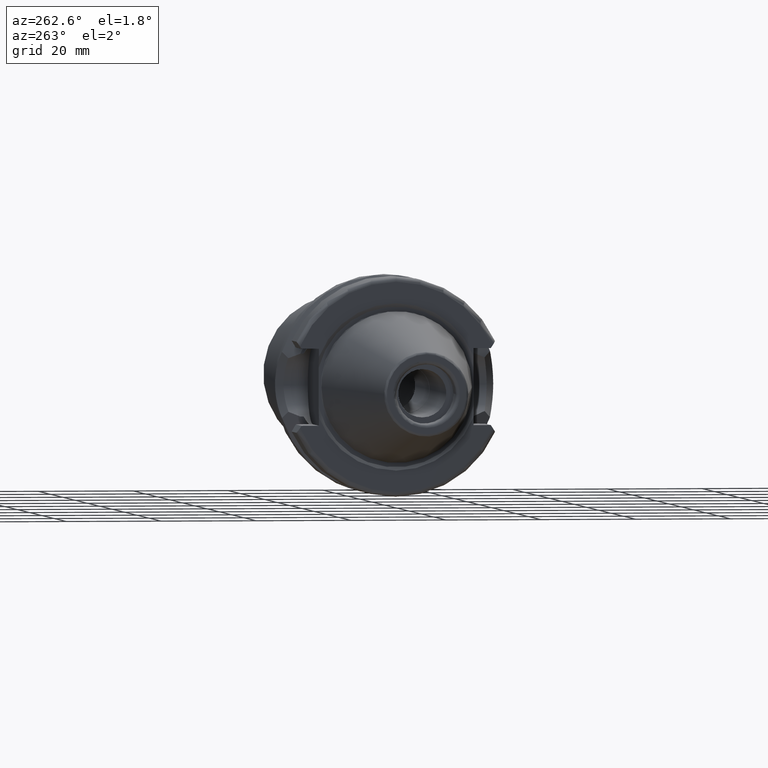
[diagram: clean part render]
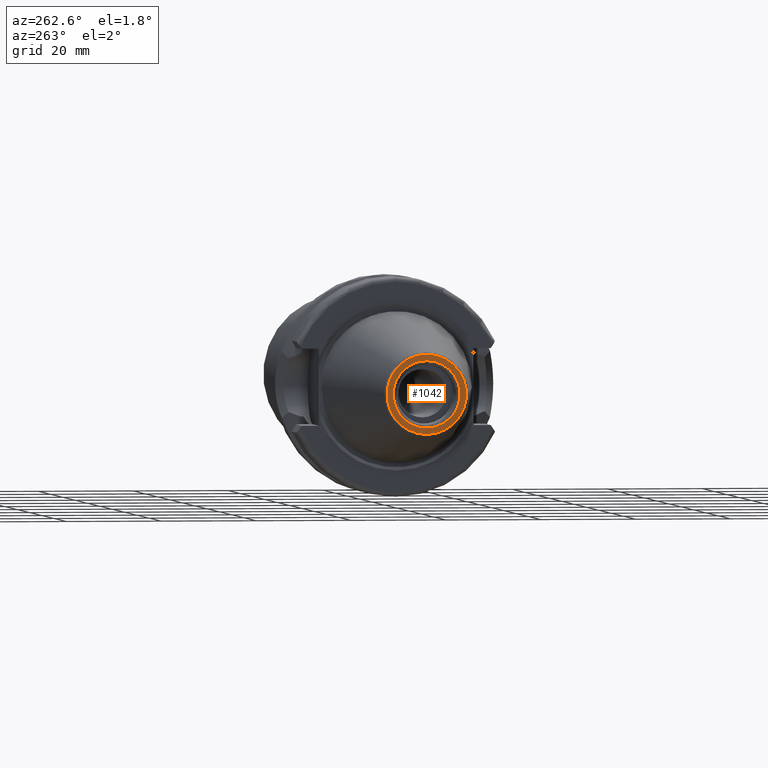
[diagram: same view with one face highlighted and labeled with its STEP entity id]
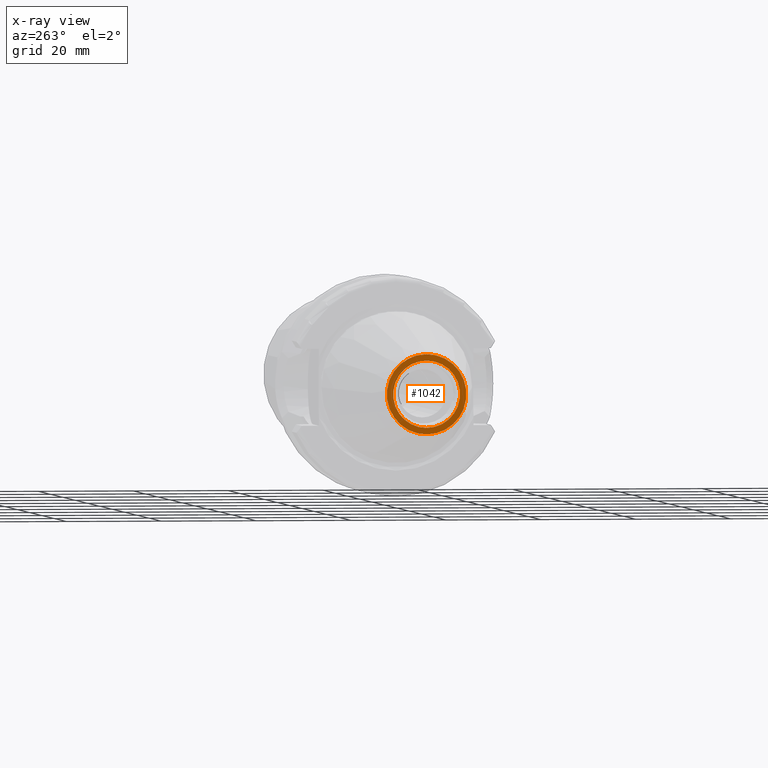
[diagram: x-ray of the same camera — body ghosted, the highlighted face saturated]
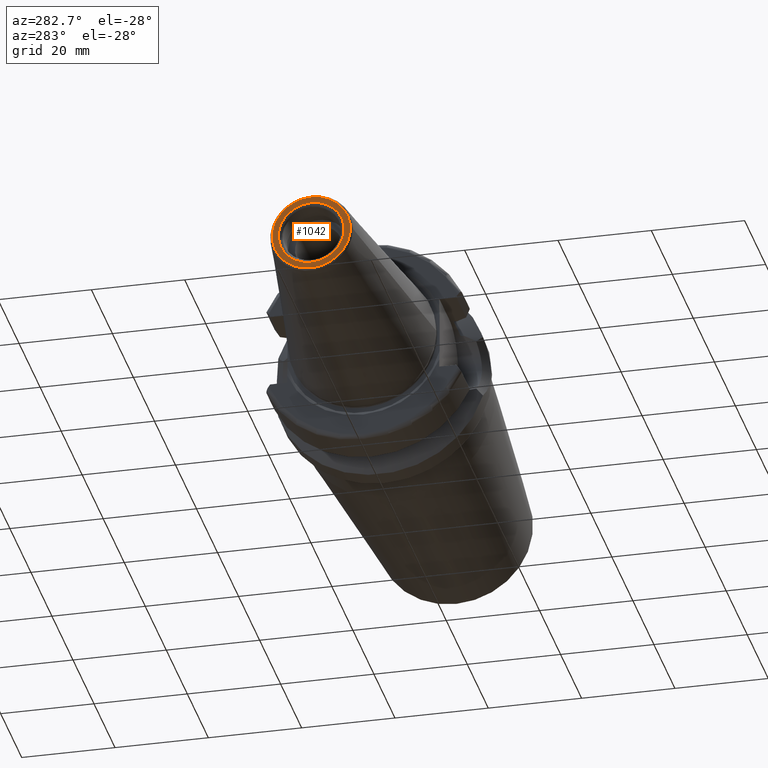
[diagram: same view with one face highlighted and labeled with its STEP entity id]
A machine part, auxiliary view. The second image highlights one B-rep face of the part: STEP entity #1042.
The next image is the same camera in x-ray: the body ghosted, the highlighted face saturated — about 0% of this face is hidden behind the body in this view.
A second angle (auxiliary view) of the same face is appended — the face is thin or edge-on in the first view.
In plain terms, the highlighted planar face has unit normal (-1, -0, 0).
Its self-contained STEP definition (entity closure, byte-faithful):
#71=FACE_BOUND('',#341,.T.);
#93=PLANE('',#1177);
#273=FACE_OUTER_BOUND('',#340,.T.);
#340=EDGE_LOOP('',(#937));
#341=EDGE_LOOP('',(#938));
#401=CIRCLE('',#1175,7.05);
#403=CIRCLE('',#1178,8.38429446518188);
#506=VERTEX_POINT('',#2042);
#507=VERTEX_POINT('',#2046);
#653=EDGE_CURVE('',#506,#506,#401,.T.);
#655=EDGE_CURVE('',#507,#507,#403,.T.);
#937=ORIENTED_EDGE('',*,*,#655,.F.);
#938=ORIENTED_EDGE('',*,*,#653,.T.);
#1042=ADVANCED_FACE('',(#273,#71),#93,.T.);
#1175=AXIS2_PLACEMENT_3D('',#2043,#1453,#1454);
#1177=AXIS2_PLACEMENT_3D('',#2045,#1457,#1458);
#1178=AXIS2_PLACEMENT_3D('',#2047,#1459,#1460);
#1453=DIRECTION('center_axis',(1.,1.62798202122572E-21,0.));
#1454=DIRECTION('ref_axis',(0.,0.,-1.));
#1457=DIRECTION('center_axis',(-1.,-1.62798202122572E-21,0.));
#1458=DIRECTION('ref_axis',(0.,0.,1.));
#1459=DIRECTION('center_axis',(1.,1.62798202122572E-21,0.));
#1460=DIRECTION('ref_axis',(0.,0.,-1.));
#2042=CARTESIAN_POINT('',(-48.4,1.21828078189914E-15,7.05));
#2043=CARTESIAN_POINT('Origin',(-48.4,2.08165677529802E-15,0.));
#2045=CARTESIAN_POINT('Origin',(-48.4,8.38429446518188,0.));
#2046=CARTESIAN_POINT('',(-48.4,1.05487683730863E-15,8.38429446518188));
#2047=CARTESIAN_POINT('Origin',(-48.4,2.08165677529802E-15,0.));